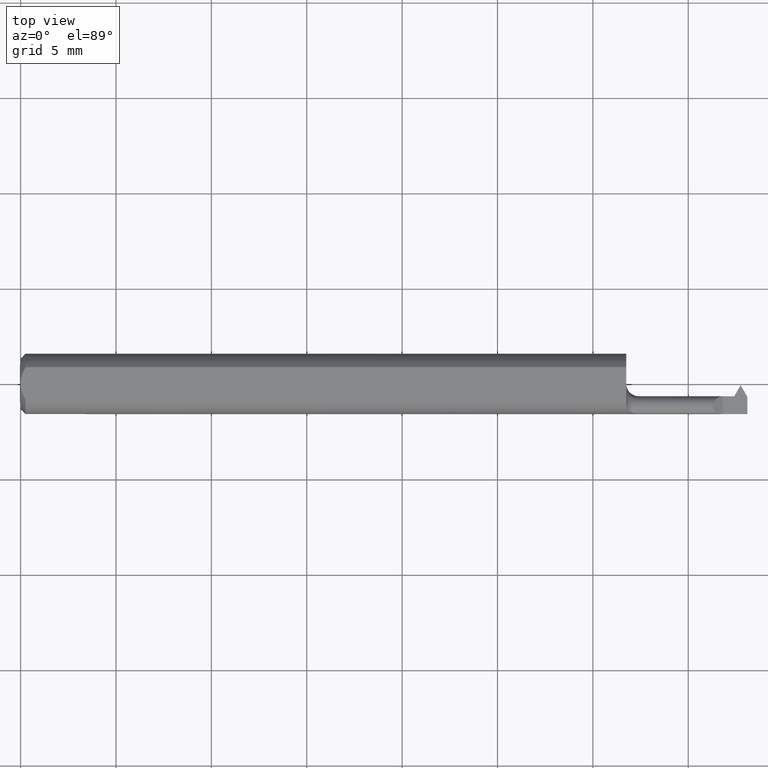
[diagram: clean part render]
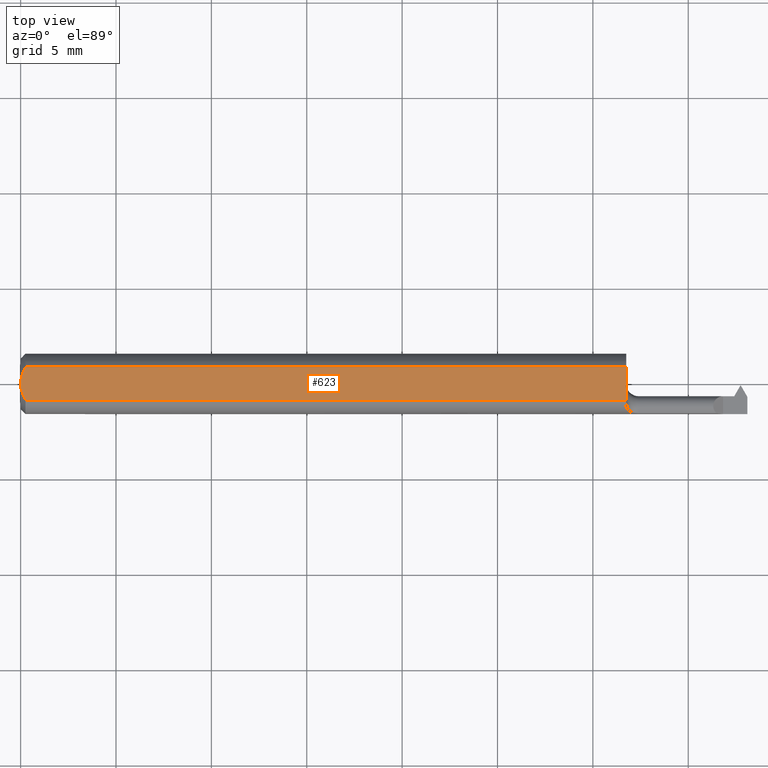
[diagram: same view with one face highlighted and labeled with its STEP entity id]
A machine part, top view. The second image highlights one B-rep face of the part: STEP entity #623.
In plain terms, the highlighted planar face has unit normal (0, 0, 1).
Its self-contained STEP definition (entity closure, byte-faithful):
#9 = EDGE_CURVE ( 'NONE', #363, #492, #293, .T. ) ;
#12 = CARTESIAN_POINT ( 'NONE',  ( 0.000000000000000000, 0.000000000000000000, 0.05234999999999997294 ) ) ;
#36 = CARTESIAN_POINT ( 'NONE',  ( 0.01000000000000001582, 0.03386738844375224849, 0.05234999999999997294 ) ) ;
#42 = CARTESIAN_POINT ( 'NONE',  ( 0.01000000000000001582, 0.03386738844375224849, 0.05234999999999997294 ) ) ;
#64 = ORIENTED_EDGE ( 'NONE', *, *, #686, .F. ) ;
#65 = CARTESIAN_POINT ( 'NONE',  ( 0.007163450771350545095, -0.02864528976618618133, 0.05234999999999997294 ) ) ;
#66 = CARTESIAN_POINT ( 'NONE',  ( 0.000000000000000000, 0.000000000000000000, 0.05234999999999997294 ) ) ;
#101 = DIRECTION ( 'NONE',  ( 1.000000000000000000, 0.000000000000000000, 0.000000000000000000 ) ) ;
#111 = DIRECTION ( 'NONE',  ( 0.000000000000000000, 0.000000000000000000, 1.000000000000000000 ) ) ;
#112 = LINE ( 'NONE', #337, #175 ) ;
#133 = VERTEX_POINT ( 'NONE', #494 ) ;
#148 = CARTESIAN_POINT ( 'NONE',  ( 0.004671770759546950945, 0.02323517832780109052, 0.05234999999999998682 ) ) ;
#169 = ORIENTED_EDGE ( 'NONE', *, *, #715, .T. ) ;
#170 = PLANE ( 'NONE',  #634 ) ;
#175 = VECTOR ( 'NONE', #101, 39.37007874015748143 ) ;
#189 = LINE ( 'NONE', #635, #226 ) ;
#205 = CARTESIAN_POINT ( 'NONE',  ( 0.007185421074056362600, 0.02868573718286564905, 0.05234999999999997294 ) ) ;
#226 = VECTOR ( 'NONE', #685, 39.37007874015748143 ) ;
#237 = EDGE_CURVE ( 'NONE', #589, #711, #112, .T. ) ;
#265 = EDGE_CURVE ( 'NONE', #133, #492, #437, .T. ) ;
#279 = EDGE_LOOP ( 'NONE', ( #636, #169, #622, #669, #64 ) ) ;
#290 = CARTESIAN_POINT ( 'NONE',  ( 0.004679365186781183836, -0.02325953974079657954, 0.05234999999999997988 ) ) ;
#293 = B_SPLINE_CURVE_WITH_KNOTS ( 'NONE', 3,
 ( #694, #375, #373, #148, #205, #36 ),
 .UNSPECIFIED., .F., .F.,
 ( 4, 2, 4 ),
 ( 0.003093386807937201135, 0.003544501666246021275, 0.003995616524554840981 ),
 .UNSPECIFIED. ) ;
#330 = CARTESIAN_POINT ( 'NONE',  ( 1.630958352158234037, 0.06235000000000000264, 0.05234999999999997294 ) ) ;
#337 = CARTESIAN_POINT ( 'NONE',  ( 0.000000000000000000, -0.03386738844375224849, 0.05234999999999997294 ) ) ;
#345 = B_SPLINE_CURVE_WITH_KNOTS ( 'NONE', 3,
 ( #563, #65, #290, #505, #547, #12 ),
 .UNSPECIFIED., .F., .F.,
 ( 4, 2, 4 ),
 ( 0.002189598257423869179, 0.002641492532680535157, 0.003093386807937201135 ),
 .UNSPECIFIED. ) ;
#351 = CARTESIAN_POINT ( 'NONE',  ( 1.250000000000000000, -0.03386738844375225543, 0.05234999999999997294 ) ) ;
#363 = VERTEX_POINT ( 'NONE', #66 ) ;
#373 = CARTESIAN_POINT ( 'NONE',  ( 0.001063697276021587047, 0.01189177144351697378, 0.05234999999999997988 ) ) ;
#375 = CARTESIAN_POINT ( 'NONE',  ( -8.573957617566337510E-16, 0.005954997531773999035, 0.05234999999999997294 ) ) ;
#413 = DIRECTION ( 'NONE',  ( -1.000000000000000000, -0.000000000000000000, -0.000000000000000000 ) ) ;
#437 = LINE ( 'NONE', #718, #583 ) ;
#492 = VERTEX_POINT ( 'NONE', #42 ) ;
#494 = CARTESIAN_POINT ( 'NONE',  ( 1.250000000000000000, 0.03386738844375224849, 0.05234999999999997294 ) ) ;
#505 = CARTESIAN_POINT ( 'NONE',  ( 0.001055043921633170472, -0.01186408073210962373, 0.05234999999999998682 ) ) ;
#547 = CARTESIAN_POINT ( 'NONE',  ( -8.345942350761171353E-16, -0.005965286321680268559, 0.05234999999999997294 ) ) ;
#551 = DIRECTION ( 'NONE',  ( 1.000000000000000000, 0.000000000000000000, -0.000000000000000000 ) ) ;
#558 = FACE_OUTER_BOUND ( 'NONE', #279, .T. ) ;
#563 = CARTESIAN_POINT ( 'NONE',  ( 0.01000000000000001582, -0.03386738844375224849, 0.05234999999999997294 ) ) ;
#583 = VECTOR ( 'NONE', #413, 39.37007874015748143 ) ;
#589 = VERTEX_POINT ( 'NONE', #674 ) ;
#622 = ORIENTED_EDGE ( 'NONE', *, *, #265, .T. ) ;
#623 = ADVANCED_FACE ( 'NONE', ( #558 ), #170, .T. ) ;
#634 = AXIS2_PLACEMENT_3D ( 'NONE', #330, #111, #551 ) ;
#635 = CARTESIAN_POINT ( 'NONE',  ( 1.250000000000000000, 0.06234999999999998183, 0.05234999999999997294 ) ) ;
#636 = ORIENTED_EDGE ( 'NONE', *, *, #237, .T. ) ;
#669 = ORIENTED_EDGE ( 'NONE', *, *, #9, .F. ) ;
#674 = CARTESIAN_POINT ( 'NONE',  ( 0.01000000000000001582, -0.03386738844375224849, 0.05234999999999997294 ) ) ;
#685 = DIRECTION ( 'NONE',  ( -3.846348412950270995E-17, 1.000000000000000000, 0.000000000000000000 ) ) ;
#686 = EDGE_CURVE ( 'NONE', #589, #363, #345, .T. ) ;
#694 = CARTESIAN_POINT ( 'NONE',  ( 0.000000000000000000, 0.000000000000000000, 0.05234999999999997294 ) ) ;
#711 = VERTEX_POINT ( 'NONE', #351 ) ;
#715 = EDGE_CURVE ( 'NONE', #711, #133, #189, .T. ) ;
#718 = CARTESIAN_POINT ( 'NONE',  ( 0.000000000000000000, 0.03386738844375224849, 0.05234999999999997294 ) ) ;